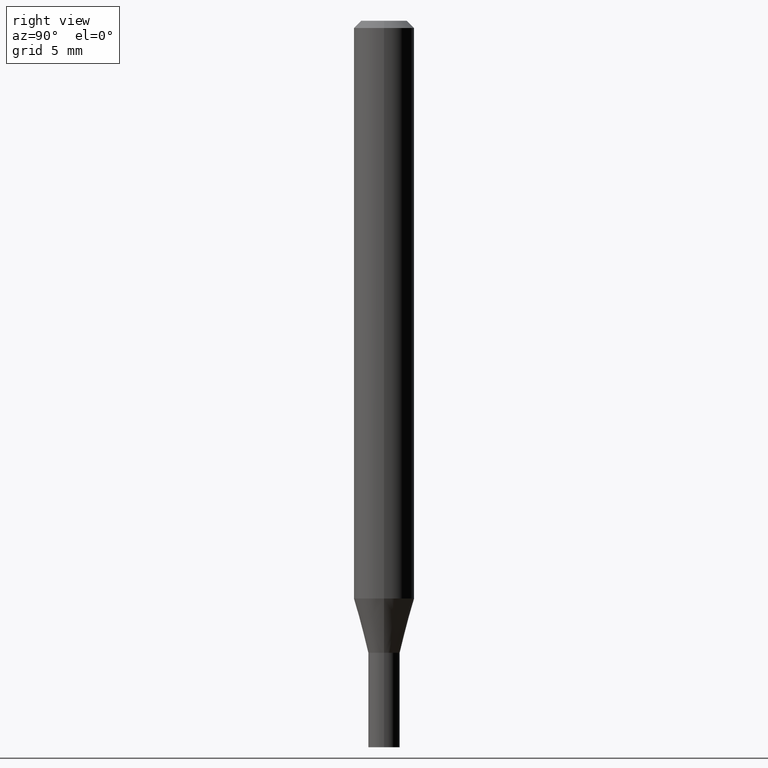
[diagram: clean part render]
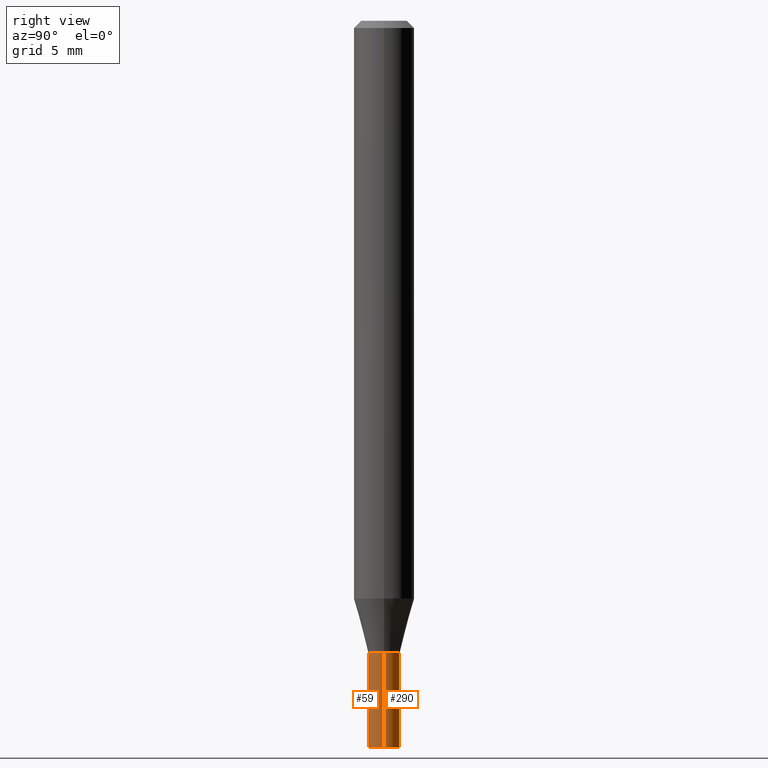
[diagram: same view with one multi-face feature highlighted, each face labeled with its STEP entity id]
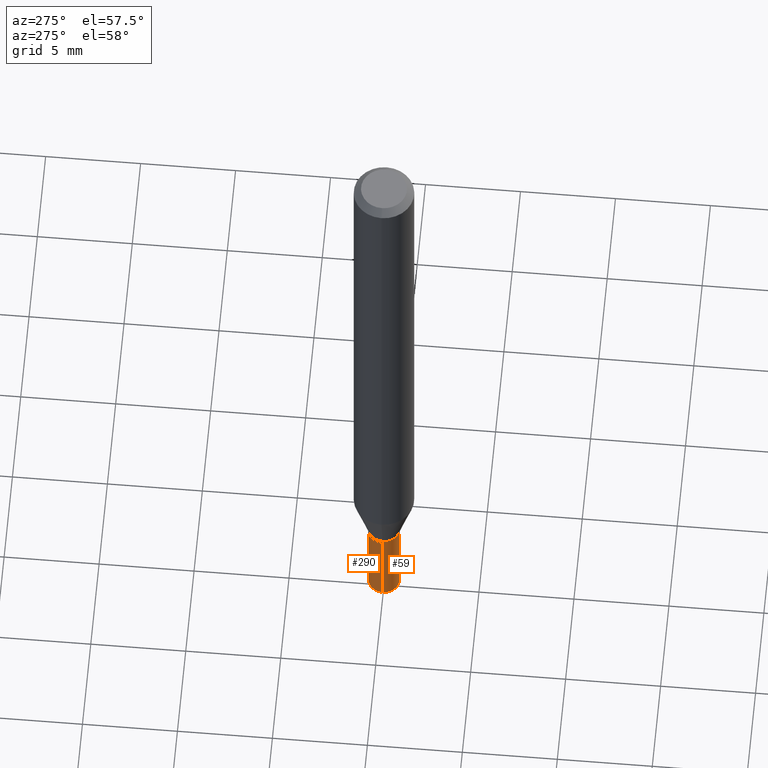
[diagram: same view with one multi-face feature highlighted, each face labeled with its STEP entity id]
A machine part, right view. The highlighted faces form ONE feature: a constant-radius fillet chain: 2 tangent blend faces with common blend radius 0.8255 mm. The faces share edges in the B-rep.
A second angle (auxiliary view) of the same feature is appended — it is thin or edge-on in the first view.
Their STEP definitions:
[1] entity #59 (Cylinder):
#7 = LINE ( 'NONE', #113, #186 ) ;
#10 = VERTEX_POINT ( 'NONE', #361 ) ;
#13 = EDGE_CURVE ( 'NONE', #259, #10, #7, .T. ) ;
#20 = ORIENTED_EDGE ( 'NONE', *, *, #131, .F. ) ;
#47 = CARTESIAN_POINT ( 'NONE',  ( 0.000000000000000000, 0.000000000000000000, 0.000000000000000000 ) ) ;
#59 = ADVANCED_FACE ( 'NONE', ( #264 ), #445, .T. ) ;
#85 = CARTESIAN_POINT ( 'NONE',  ( 0.03250000000000000111, -5.464168295289522318E-15, -1.500000000000000222 ) ) ;
#98 = CARTESIAN_POINT ( 'NONE',  ( 0.03250000000000000111, -4.783329434215109105E-15, -1.305000000000000160 ) ) ;
#103 = AXIS2_PLACEMENT_3D ( 'NONE', #166, #448, #128 ) ;
#108 = EDGE_LOOP ( 'NONE', ( #400, #218, #127, #20 ) ) ;
#113 = CARTESIAN_POINT ( 'NONE',  ( -0.03250000000000000111, 2.309263891220325683E-16, -1.598653904332844407E-30 ) ) ;
#117 = VERTEX_POINT ( 'NONE', #85 ) ;
#124 = DIRECTION ( 'NONE',  ( 1.000000000000000000, -6.982962677686265922E-15, 4.876176775795935232E-29 ) ) ;
#127 = ORIENTED_EDGE ( 'NONE', *, *, #130, .T. ) ;
#128 = DIRECTION ( 'NONE',  ( 1.000000000000000000, -6.982962677686258033E-15, 0.000000000000000000 ) ) ;
#130 = EDGE_CURVE ( 'NONE', #117, #332, #368, .T. ) ;
#131 = EDGE_CURVE ( 'NONE', #10, #332, #387, .T. ) ;
#142 = CIRCLE ( 'NONE', #446, 0.03250000000000000111 ) ;
#161 = CARTESIAN_POINT ( 'NONE',  ( 0.03250000000000000111, -2.269462870248036484E-16, 1.584757452133678993E-30 ) ) ;
#166 = CARTESIAN_POINT ( 'NONE',  ( 3.191336792071603685E-29, -4.556383147190305752E-15, -1.305000000000000160 ) ) ;
#186 = VECTOR ( 'NONE', #359, 39.37007874015748143 ) ;
#195 = DIRECTION ( 'NONE',  ( -2.445468806185136597E-29, 3.491481338843145583E-15, 1.000000000000000000 ) ) ;
#210 = DIRECTION ( 'NONE',  ( -2.445468806185136597E-29, 3.491481338843145583E-15, 1.000000000000000000 ) ) ;
#218 = ORIENTED_EDGE ( 'NONE', *, *, #372, .T. ) ;
#246 = CARTESIAN_POINT ( 'NONE',  ( -0.03250000000000000111, -4.665876188605479199E-15, -1.500000000000000222 ) ) ;
#259 = VERTEX_POINT ( 'NONE', #246 ) ;
#264 = FACE_OUTER_BOUND ( 'NONE', #108, .T. ) ;
#282 = AXIS2_PLACEMENT_3D ( 'NONE', #47, #195, #124 ) ;
#304 = VECTOR ( 'NONE', #308, 39.37007874015748143 ) ;
#308 = DIRECTION ( 'NONE',  ( -2.445468806185136877E-29, 3.491481338843145188E-15, 1.000000000000000000 ) ) ;
#332 = VERTEX_POINT ( 'NONE', #98 ) ;
#359 = DIRECTION ( 'NONE',  ( -2.445468806185136877E-29, 3.491481338843145188E-15, 1.000000000000000000 ) ) ;
#361 = CARTESIAN_POINT ( 'NONE',  ( -0.03250000000000000111, -4.665876188605479199E-15, -1.305000000000000160 ) ) ;
#368 = LINE ( 'NONE', #161, #304 ) ;
#372 = EDGE_CURVE ( 'NONE', #259, #117, #142, .T. ) ;
#387 = CIRCLE ( 'NONE', #103, 0.03250000000000000111 ) ;
#400 = ORIENTED_EDGE ( 'NONE', *, *, #13, .F. ) ;
#423 = CARTESIAN_POINT ( 'NONE',  ( 3.668203209277704895E-29, -5.237222008264718177E-15, -1.500000000000000222 ) ) ;
#430 = DIRECTION ( 'NONE',  ( 1.000000000000000000, -6.982962677686258033E-15, 0.000000000000000000 ) ) ;
#445 = CYLINDRICAL_SURFACE ( 'NONE', #282, 0.03250000000000000111 ) ;
#446 = AXIS2_PLACEMENT_3D ( 'NONE', #423, #210, #430 ) ;
#448 = DIRECTION ( 'NONE',  ( -2.445468806185136597E-29, 3.491481338843145583E-15, 1.000000000000000000 ) ) ;
[2] entity #290 (Cylinder):
#7 = LINE ( 'NONE', #113, #186 ) ;
#10 = VERTEX_POINT ( 'NONE', #361 ) ;
#13 = EDGE_CURVE ( 'NONE', #259, #10, #7, .T. ) ;
#16 = ORIENTED_EDGE ( 'NONE', *, *, #295, .T. ) ;
#23 = DIRECTION ( 'NONE',  ( -2.445468806185136597E-29, 3.491481338843145583E-15, 1.000000000000000000 ) ) ;
#67 = EDGE_CURVE ( 'NONE', #332, #10, #94, .T. ) ;
#85 = CARTESIAN_POINT ( 'NONE',  ( 0.03250000000000000111, -5.464168295289522318E-15, -1.500000000000000222 ) ) ;
#89 = DIRECTION ( 'NONE',  ( 1.000000000000000000, -6.982962677686258033E-15, 0.000000000000000000 ) ) ;
#94 = CIRCLE ( 'NONE', #148, 0.03250000000000000111 ) ;
#96 = DIRECTION ( 'NONE',  ( -2.445468806185136597E-29, 3.491481338843145583E-15, 1.000000000000000000 ) ) ;
#98 = CARTESIAN_POINT ( 'NONE',  ( 0.03250000000000000111, -4.783329434215109105E-15, -1.305000000000000160 ) ) ;
#100 = DIRECTION ( 'NONE',  ( 1.000000000000000000, -6.982962677686265922E-15, 4.876176775795935232E-29 ) ) ;
#113 = CARTESIAN_POINT ( 'NONE',  ( -0.03250000000000000111, 2.309263891220325683E-16, -1.598653904332844407E-30 ) ) ;
#117 = VERTEX_POINT ( 'NONE', #85 ) ;
#130 = EDGE_CURVE ( 'NONE', #117, #332, #368, .T. ) ;
#148 = AXIS2_PLACEMENT_3D ( 'NONE', #169, #23, #89 ) ;
#149 = CIRCLE ( 'NONE', #159, 0.03250000000000000111 ) ;
#158 = ORIENTED_EDGE ( 'NONE', *, *, #13, .T. ) ;
#159 = AXIS2_PLACEMENT_3D ( 'NONE', #171, #239, #317 ) ;
#161 = CARTESIAN_POINT ( 'NONE',  ( 0.03250000000000000111, -2.269462870248036484E-16, 1.584757452133678993E-30 ) ) ;
#169 = CARTESIAN_POINT ( 'NONE',  ( 3.191336792071603685E-29, -4.556383147190305752E-15, -1.305000000000000160 ) ) ;
#171 = CARTESIAN_POINT ( 'NONE',  ( 3.668203209277704895E-29, -5.237222008264718177E-15, -1.500000000000000222 ) ) ;
#173 = AXIS2_PLACEMENT_3D ( 'NONE', #390, #96, #100 ) ;
#186 = VECTOR ( 'NONE', #359, 39.37007874015748143 ) ;
#217 = ORIENTED_EDGE ( 'NONE', *, *, #67, .F. ) ;
#239 = DIRECTION ( 'NONE',  ( -2.445468806185136597E-29, 3.491481338843145583E-15, 1.000000000000000000 ) ) ;
#246 = CARTESIAN_POINT ( 'NONE',  ( -0.03250000000000000111, -4.665876188605479199E-15, -1.500000000000000222 ) ) ;
#259 = VERTEX_POINT ( 'NONE', #246 ) ;
#290 = ADVANCED_FACE ( 'NONE', ( #310 ), #417, .T. ) ;
#295 = EDGE_CURVE ( 'NONE', #117, #259, #149, .T. ) ;
#304 = VECTOR ( 'NONE', #308, 39.37007874015748143 ) ;
#306 = EDGE_LOOP ( 'NONE', ( #16, #158, #217, #399 ) ) ;
#308 = DIRECTION ( 'NONE',  ( -2.445468806185136877E-29, 3.491481338843145188E-15, 1.000000000000000000 ) ) ;
#310 = FACE_OUTER_BOUND ( 'NONE', #306, .T. ) ;
#317 = DIRECTION ( 'NONE',  ( 1.000000000000000000, -6.982962677686258033E-15, 0.000000000000000000 ) ) ;
#332 = VERTEX_POINT ( 'NONE', #98 ) ;
#359 = DIRECTION ( 'NONE',  ( -2.445468806185136877E-29, 3.491481338843145188E-15, 1.000000000000000000 ) ) ;
#361 = CARTESIAN_POINT ( 'NONE',  ( -0.03250000000000000111, -4.665876188605479199E-15, -1.305000000000000160 ) ) ;
#368 = LINE ( 'NONE', #161, #304 ) ;
#390 = CARTESIAN_POINT ( 'NONE',  ( 0.000000000000000000, 0.000000000000000000, 0.000000000000000000 ) ) ;
#399 = ORIENTED_EDGE ( 'NONE', *, *, #130, .F. ) ;
#417 = CYLINDRICAL_SURFACE ( 'NONE', #173, 0.03250000000000000111 ) ;